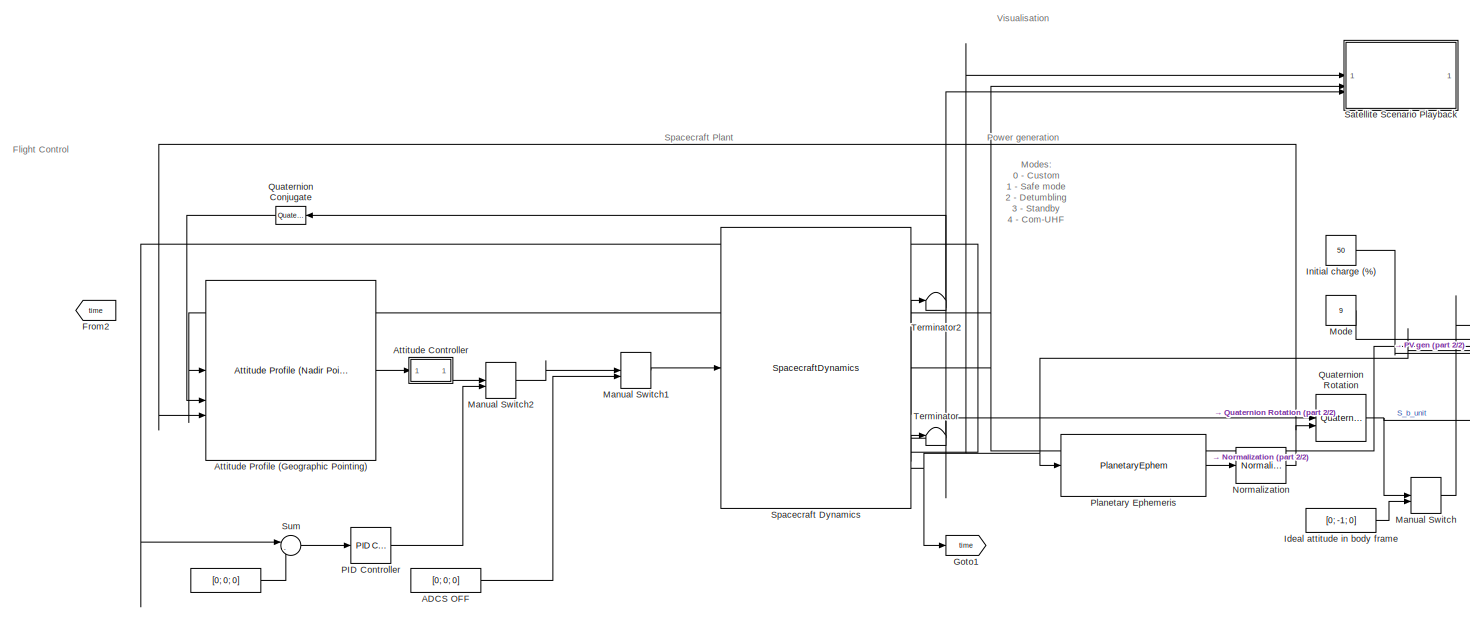
[diagram: root canvas - part 1/2, most of the canvas]
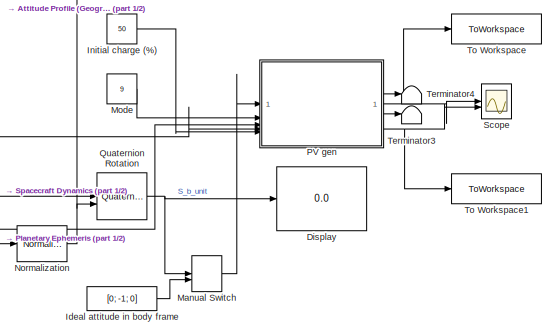
[diagram: root canvas - part 2/2, middle right region]
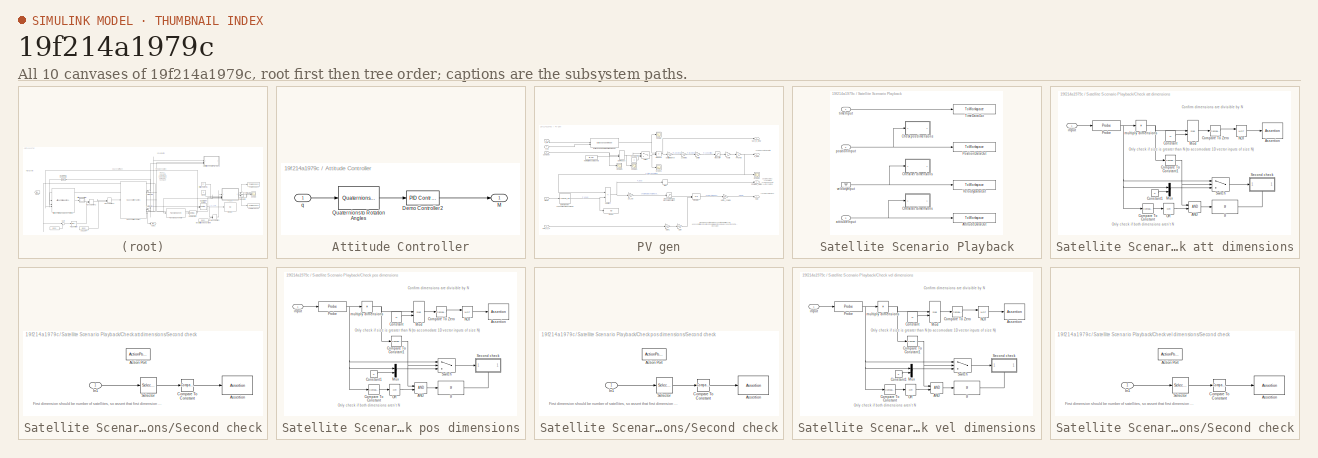
[diagram: thumbnail index - all 10 canvases of the model, root first then tree order]
MODEL slx_19f214a1979c
KIND model
CONFIG AbsTol = 1e-5
CONFIG EnableMultiTasking = off
CONFIG FixedStep = 1
CONFIG MaxStep = 5
CONFIG MinStep = auto
CONFIG RelTol = 0.5e-5
CONFIG SampleTimeConstraint = Unconstrained
CONFIG SolverName = FixedStepAuto
CONFIG StartTime = 0.0
CONFIG StopTime = 93*60
BLOCK [Constant]  
  Value = [0; 0; 0]
BLOCK [Constant] ADCS OFF
  Value = [0; 0; 0]
BLOCK [SubSystem] Attitude Controller
BLOCK [Reference] Attitude Controller/Demo Controller2  REF=slpidlib/PID Controller
  SourceBlock = slpidlib/PID Controller
  SourceType = PID 1dof
BLOCK [Outport] Attitude Controller/M
BLOCK [Reference] Attitude Controller/Quaternions to Rotation Angles  REF=sharedtransform/Quaternions to Rotation Angles
  AttributesFormatString = Rotation Order: %<rotationOrder>
  SourceBlock = sharedtransform/Quaternions to Rotation Angles
  SourceType = Quat2Ang
BLOCK [Inport] Attitude Controller/q
BLOCK [Reference] Attitude Profile (Geographic Pointing)  REF=aerolibsatdyn/Attitude Profile
(Nadir Pointing)
  SourceBlock = aerolibsatdyn/Attitude Profile\n(Nadir Pointing)
  SourceType = Attitude Profile
BLOCK [Display] Display
  Decimation = 1
BLOCK [From] From2
  GotoTag = time
BLOCK [Goto] Goto1
  GotoTag = time
BLOCK [Constant] Ideal attitude in body frame
  Value = [0; -1; 0]
BLOCK [Constant] Initial charge (%)
  Value = 50
BLOCK [ManualSwitch] Manual Switch
  CurrentSetting = 0
BLOCK [ManualSwitch] Manual Switch1
BLOCK [ManualSwitch] Manual Switch2
BLOCK [Constant] Mode
  Value = 9
BLOCK [Reference] Normalization  REF=dspmathops/Normalization
  SourceBlock = dspmathops/Normalization
  SourceType = Normalization
BLOCK [Reference] PID Controller  REF=slpidlib/PID Controller
  LibrarySourceBlock = simulink/Continuous/PID Controller
  SourceBlock = slpidlib/PID Controller
  SourceType = PID 1dof
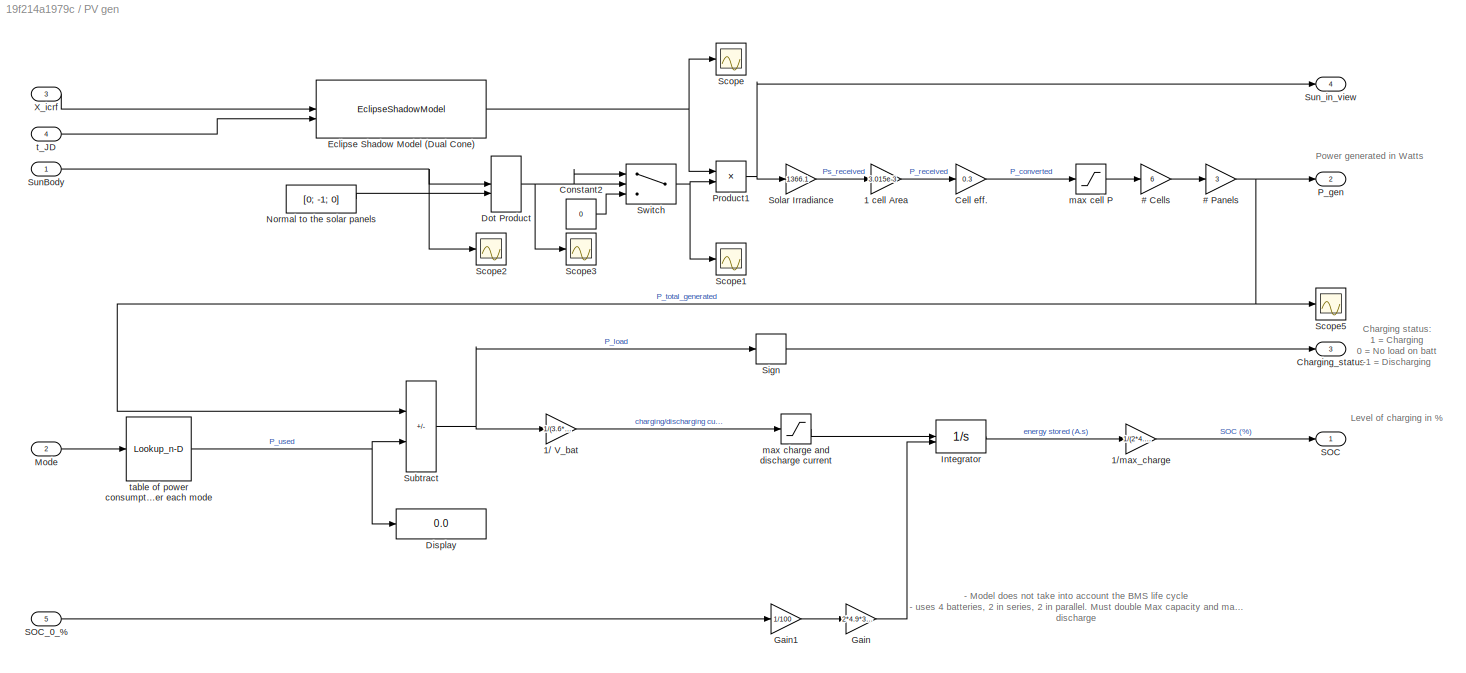
BLOCK [SubSystem] PV gen
BLOCK [Gain] PV gen/# Cells
  Gain = 6
BLOCK [Gain] PV gen/# Panels
  Gain = 3
BLOCK [Gain] PV gen/1 cell Area
  Gain = 3.015e-3
BLOCK [Gain] PV gen/1// V_bat
  Gain = 1/(3.6*2)
BLOCK [Gain] PV gen/1//max_charge
  Gain = 1/(2*4.9*3600)
BLOCK [Gain] PV gen/Cell eff.
  Gain = 0.3
BLOCK [Outport] PV gen/Charging_status
  Port = 3
BLOCK [Constant] PV gen/Constant2
  Value = 0
BLOCK [Display] PV gen/Display
  Decimation = 1
BLOCK [DotProduct] PV gen/Dot Product
  OutDataTypeStr = Inherit: Inherit via internal rule
BLOCK [EclipseShadowModel] PV gen/Eclipse Shadow Model (Dual Cone)
  ephemerisStartDate = juliandate(2025, 1, 1)
  startDate = juliandate(2025, 1, 1)
  timeSource = Port (Julian date)
  useEphemerisDateRange = off
BLOCK [Gain] PV gen/Gain
  Gain = 2*4.9*3600
BLOCK [Gain] PV gen/Gain1
  Gain = 1/100
BLOCK [Integrator] PV gen/Integrator
  InitialCondition = 2*4.9*3600
  InitialConditionSource = external
  LimitOutput = on
  LowerSaturationLimit = 0
  UpperSaturationLimit = 2*4.9*3600
BLOCK [Inport] PV gen/Mode
  Port = 2
BLOCK [Constant] PV gen/Normal to the solar panels
  Value = [0; -1; 0]
BLOCK [Outport] PV gen/P_gen
  Port = 2
BLOCK [Product] PV gen/Product1
BLOCK [Outport] PV gen/SOC
BLOCK [Inport] PV gen/SOC_0_%
  Port = 5
BLOCK [Scope] PV gen/Scope
  ActiveDisplayYMaximum = 1.125
  ActiveDisplayYMinimum = -0.12499999999999997
  DataLoggingVariableName = ScopeData1
  Floating = off
  GraphicalSettings = {"Style":{"BackgroundColor":[0.12941176470588237,0.12941176470588237,0.12941176470588237],"AxesColor":[0.07058823529411765,0.07058823529411765,0.07058823529411765],"LabelsColor":[0.8509803921568627,0.8509803921568627,0.8509803921568627],"PreserveColors":false,"Visible":[true],"LineStyle":["-"],"LineWidth":[1.5],"BarWidth":[0.9],"LineColor":["auto"],"LineFaceAlpha":[1],"LineEdgeAlpha":[1],"Marker":...<+1999ch>
  MultipleDisplayCache = [{"MaxYLimMag":1.125,"MaxYLimReal":1.125,"MinYLimMag":0,"MinYLimReal":-0.12499999999999997,"PlotAsMagnitudePhase":false,"ShowGrid":true,"ShowLegend":false,"Title":"%<SignalLabel>","YLabel":""}]
  NumInputPorts = 1
  ScopeFrameLocation = window
  WasSavedAsWebScope = on
  WindowPosition = [488.000000,222.000000,560.000000,420.000000,]
BLOCK [Scope] PV gen/Scope1
  ActiveDisplayYMaximum = 1.0507685968732166
  ActiveDisplayYMinimum = -0.12862193886085324
  DataLoggingVariableName = ScopeData2
  Floating = off
  GraphicalSettings = {"AxesScalingProperties":{"AlignXAxis":"Center","AlignYAxis":"Center","AutoScaleXAxisLimits":false,"AxesScaling":"Manual","AxesScalingNumUpdates":10,"ExpandOnly":true,"ScaleAxesLimitsAtStop":false,"XAxisDataRange":100,"YAxisDataRange":80},"DisplayProperties":{"ColorOrder":["auto","auto","auto","auto","auto","auto","auto","auto","auto","auto","auto","auto","auto","auto","auto","auto","auto","auto",...<+2004ch>
  MultipleDisplayCache = [{"MaxYLimMag":1.0614514821606629,"MaxYLimReal":1.0507685968732166,"MinYLimMag":0,"MinYLimReal":-0.12862193886085324,"PlotAsMagnitudePhase":false,"ShowGrid":true,"ShowLegend":false,"Title":"%<SignalLabel>","YLabel":""}]
  NumInputPorts = 1
  ScopeFrameLocation = window
  WasSavedAsWebScope = on
  WindowPosition = [488.000000,222.000000,560.000000,420.000000,]
BLOCK [Scope] PV gen/Scope2
  ActiveDisplayYMaximum = 0.83418993366486061
  ActiveDisplayYMinimum = -1.2032866787642285
  DataLoggingVariableName = ScopeData3
  Floating = off
  GraphicalSettings = {"Style":{"BackgroundColor":[0.12941176470588237,0.12941176470588237,0.12941176470588237],"AxesColor":[0.07058823529411765,0.07058823529411765,0.07058823529411765],"LabelsColor":[0.8509803921568627,0.8509803921568627,0.8509803921568627],"PreserveColors":false,"Visible":[true,true,true],"LineStyle":["-","-","-"],"LineWidth":[1.5,1.5,1.5],"BarWidth":[0.9,0.9,0.9],"LineColor":["auto","auto","auto"],"...<+2240ch>
  MultipleDisplayCache = [{"MaxYLimMag":1.2032866787642285,"MaxYLimReal":0.83418993366486061,"MinYLimMag":0,"MinYLimReal":-1.2032866787642285,"PlotAsMagnitudePhase":false,"ShowGrid":true,"ShowLegend":true,"Title":"%<SignalLabel>","YLabel":""}]
  NumInputPorts = 1
  ScopeFrameLocation = window
  ShowLegend = on
  WasSavedAsWebScope = on
  WindowPosition = [488.000000,222.000000,560.000000,420.000000,]
BLOCK [Scope] PV gen/Scope3
  ActiveDisplayYMaximum = 1.3555163431944595
  ActiveDisplayYMinimum = -1.6944670146088379
  DataLoggingVariableName = ScopeData4
  Floating = off
  GraphicalSettings = {"AxesScalingProperties":{"AlignXAxis":"Center","AlignYAxis":"Center","AutoScaleXAxisLimits":false,"AxesScaling":"Manual","AxesScalingNumUpdates":10,"ExpandOnly":true,"ScaleAxesLimitsAtStop":false,"XAxisDataRange":100,"YAxisDataRange":80},"DisplayProperties":{"ColorOrder":["auto","auto","auto","auto","auto","auto","auto","auto","auto","auto","auto","auto","auto","auto","auto","auto","auto","auto",...<+2016ch>
  MultipleDisplayCache = [{"MaxYLimMag":1.1402567662134069,"MaxYLimReal":1.3555163431944595,"MinYLimMag":0,"MinYLimReal":-1.6944670146088379,"PlotAsMagnitudePhase":false,"ShowGrid":true,"ShowLegend":false,"Title":"%<SignalLabel>","YLabel":""}]
  NumInputPorts = 1
  ScopeFrameLocation = window
  WasSavedAsWebScope = on
  WindowPosition = [488.000000,222.000000,560.000000,420.000000,]
BLOCK [Scope] PV gen/Scope5
  ActiveDisplayYMaximum = 19.168186858045033
  ActiveDisplayYMinimum = -9.7669917154673218
  DataLoggingVariableName = ScopeData6
  Floating = off
  GraphicalSettings = {"Style":{"BackgroundColor":[0.12941176470588237,0.12941176470588237,0.12941176470588237],"AxesColor":[0.07058823529411765,0.07058823529411765,0.07058823529411765],"LabelsColor":[0.8509803921568627,0.8509803921568627,0.8509803921568627],"PreserveColors":false,"Visible":[true],"LineStyle":["-"],"LineWidth":[1.5],"BarWidth":[0.9],"LineColor":["auto"],"LineFaceAlpha":[1],"LineEdgeAlpha":[1],"Marker":...<+1999ch>
  MultipleDisplayCache = [{"MaxYLimMag":10.623762500464176,"MaxYLimReal":19.168186858045033,"MinYLimMag":0,"MinYLimReal":-9.7669917154673218,"PlotAsMagnitudePhase":false,"ShowGrid":true,"ShowLegend":false,"Title":"%<SignalLabel>","YLabel":""}]
  NumInputPorts = 1
  ScopeFrameLocation = window
  WasSavedAsWebScope = on
  WindowPosition = [83.000000,-92.000000,1440.000000,844.000000,]
BLOCK [Signum] PV gen/Sign
BLOCK [Gain] PV gen/Solar Irradiance
  Gain = 1366.1
BLOCK [Sum] PV gen/Subtract
  IconShape = rectangular
  Inputs = +-
BLOCK [Inport] PV gen/SunBody
BLOCK [Outport] PV gen/Sun_in_view
  Port = 4
BLOCK [Switch] PV gen/Switch
  Criteria = u2 > Threshold
  InputSameDT = off
  SaturateOnIntegerOverflow = off
BLOCK [Inport] PV gen/X_icrf
  Port = 3
BLOCK [Saturate] PV gen/max cell P
  LowerLimit = 0
  UpperLimit = 1.23
BLOCK [Saturate] PV gen/max charge and discharge current
  LowerLimit = -(2*4.9)
  UpperLimit = (2*2.45)
BLOCK [Inport] PV gen/t_JD
  Port = 4
BLOCK [Lookup_n-D] PV gen/table of power consumption per each mode
  BreakpointsForDimension1 = [0, 1, 2, 3, 4, 5, 6, 7, 8, 9]
  InputPortMap = u0
  InternalRulePriority = Speed
  NumberOfTableDimensions = 1
  RndMeth = Simplest
  Table = [0, 2.2, 4.93, 5.32, 8.97, 12.44, 8.66, 10.93, 11.79, 6.86]
BLOCK [PlanetaryEphem] Planetary Ephemeris
  outputVelocity = off
BLOCK [Reference] Quaternion Conjugate  REF=aerolibutil/Quaternion
Conjugate
  SourceBlock = aerolibutil/Quaternion\nConjugate
  SourceType = Quaternion Conjugate
BLOCK [Reference] Quaternion Rotation  REF=aerolibutil/Quaternion
Rotation
  SourceBlock = aerolibutil/Quaternion\nRotation
  SourceType = Quaternion Rotation
BLOCK [SubSystem] Satellite Scenario Playback
  AttributesFormatString = Open viewer: %<openViewer>
  StopFcn = exSatScenBlk = gcb;\nexSatScenMdl = bdroot(exSatScenBlk);\n\n% If workspace blocks are stored in single output variable, need to access from there\nif get_param(exSatScenMdl, "ReturnWorkspaceOutputs") == "on"\n    exSatScenOutVar = get_param(exSatScenMdl, "ReturnWorkspaceOutputsName");\n    if exist(exSatScenOutVar)\n        exSatScenTimeData = eval(exSatScenOutVar).exSatScenTimeData;\n        exSatScenPo...<+867ch>
BLOCK [ToWorkspace] Satellite Scenario Playback/AttitudeDataOut
  FixptAsFi = on
  MaxDataPoints = inf
  SampleTime = -1
  VariableName = exSatScenAttitudeData
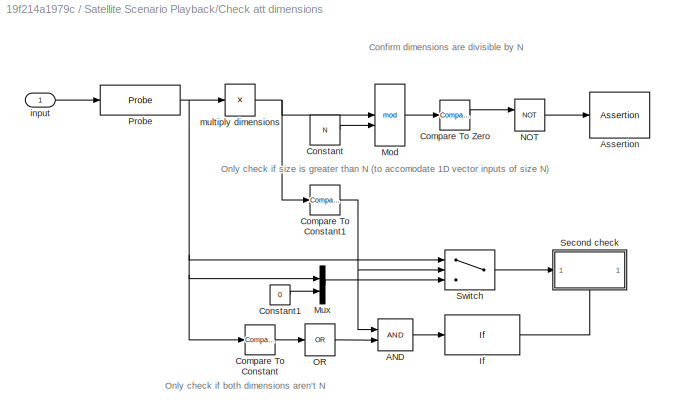
BLOCK [SubSystem] Satellite Scenario Playback/Check att dimensions
BLOCK [Logic] Satellite Scenario Playback/Check att dimensions/AND
  AllPortsSameDT = off
  IconShape = distinctive
  OutDataTypeStr = boolean
BLOCK [Assertion] Satellite Scenario Playback/Check att dimensions/Assertion
  AssertionFailFcn = error("Attitude input must be be a vector with 4 elements or a 2-D array of size [m x 4].")
BLOCK [Reference] Satellite Scenario Playback/Check att dimensions/Compare To Constant  REF=simulink/Logic and Bit
Operations/Compare
To Constant
  SourceBlock = simulink/Logic and Bit\nOperations/Compare\nTo Constant
  SourceType = Compare To Constant
BLOCK [Reference] Satellite Scenario Playback/Check att dimensions/Compare To Constant1  REF=simulink/Logic and Bit
Operations/Compare
To Constant
  SourceBlock = simulink/Logic and Bit\nOperations/Compare\nTo Constant
  SourceType = Compare To Constant
BLOCK [Reference] Satellite Scenario Playback/Check att dimensions/Compare To Zero  REF=simulink/Logic and Bit
Operations/Compare
To Zero
  SourceBlock = simulink/Logic and Bit\nOperations/Compare\nTo Zero
  SourceType = Compare To Zero
BLOCK [Constant] Satellite Scenario Playback/Check att dimensions/Constant
  OutDataTypeStr = uint8
  Value = N
BLOCK [Constant] Satellite Scenario Playback/Check att dimensions/Constant1
  OutDataTypeStr = uint8
  Value = 0
BLOCK [If] Satellite Scenario Playback/Check att dimensions/If
  IfExpression = u1 ~= 0
  ShowElse = off
  ZeroCross = off
BLOCK [Math] Satellite Scenario Playback/Check att dimensions/Mod
  Operator = mod
BLOCK [Mux] Satellite Scenario Playback/Check att dimensions/Mux
  DisplayOption = bar
  Inputs = 2
BLOCK [Logic] Satellite Scenario Playback/Check att dimensions/NOT
  AllPortsSameDT = off
  IconShape = distinctive
  Operator = NOT
  OutDataTypeStr = boolean
BLOCK [Logic] Satellite Scenario Playback/Check att dimensions/OR
  AllPortsSameDT = off
  IconShape = distinctive
  Inputs = 1
  Operator = OR
  OutDataTypeStr = boolean
BLOCK [Probe] Satellite Scenario Playback/Check att dimensions/Probe
  ProbeComplexSignal = off
  ProbeDimensionsDataType = uint8
  ProbeSampleTime = off
  ProbeSignalDimensions = on
  ProbeWidth = off
BLOCK [SubSystem] Satellite Scenario Playback/Check att dimensions/Second check
  NameLocation = top
  TreatAsAtomicUnit = on
BLOCK [ActionPort] Satellite Scenario Playback/Check att dimensions/Second check/Action Port
  ActionPortLabel = if(u1 ~= 0)
BLOCK [Assertion] Satellite Scenario Playback/Check att dimensions/Second check/Assertion
  AssertionFailFcn = error("Attitude input must be be a vector with 4 elements or a 2-D array of size [m x 4].")
BLOCK [Reference] Satellite Scenario Playback/Check att dimensions/Second check/Compare To Constant  REF=simulink/Logic and Bit
Operations/Compare
To Constant
  SourceBlock = simulink/Logic and Bit\nOperations/Compare\nTo Constant
  SourceType = Compare To Constant
BLOCK [Inport] Satellite Scenario Playback/Check att dimensions/Second check/In1
BLOCK [Selector] Satellite Scenario Playback/Check att dimensions/Second check/Selector
  IndexOptions = Index vector (dialog)
  Indices = [1]
  InputPortWidth = 2
  OutputSizes = 1
BLOCK [Switch] Satellite Scenario Playback/Check att dimensions/Switch
  Criteria = u2 ~= 0
  InputSameDT = off
  SaturateOnIntegerOverflow = off
BLOCK [Inport] Satellite Scenario Playback/Check att dimensions/input
BLOCK [Product] Satellite Scenario Playback/Check att dimensions/multiply dimensions
  Inputs = *
  OutDataTypeStr = uint8
BLOCK [SubSystem] Satellite Scenario Playback/Check pos dimensions
BLOCK [Logic] Satellite Scenario Playback/Check pos dimensions/AND
  AllPortsSameDT = off
  IconShape = distinctive
  OutDataTypeStr = boolean
BLOCK [Assertion] Satellite Scenario Playback/Check pos dimensions/Assertion
  AssertionFailFcn = error("Position input must be be a vector with 3 elements or a 2-D array of size [m x 3].")
BLOCK [Reference] Satellite Scenario Playback/Check pos dimensions/Compare To Constant  REF=simulink/Logic and Bit
Operations/Compare
To Constant
  SourceBlock = simulink/Logic and Bit\nOperations/Compare\nTo Constant
  SourceType = Compare To Constant
BLOCK [Reference] Satellite Scenario Playback/Check pos dimensions/Compare To Constant1  REF=simulink/Logic and Bit
Operations/Compare
To Constant
  SourceBlock = simulink/Logic and Bit\nOperations/Compare\nTo Constant
  SourceType = Compare To Constant
BLOCK [Reference] Satellite Scenario Playback/Check pos dimensions/Compare To Zero  REF=simulink/Logic and Bit
Operations/Compare
To Zero
  SourceBlock = simulink/Logic and Bit\nOperations/Compare\nTo Zero
  SourceType = Compare To Zero
BLOCK [Constant] Satellite Scenario Playback/Check pos dimensions/Constant
  OutDataTypeStr = uint8
  Value = N
BLOCK [Constant] Satellite Scenario Playback/Check pos dimensions/Constant1
  OutDataTypeStr = uint8
  Value = 0
BLOCK [If] Satellite Scenario Playback/Check pos dimensions/If
  IfExpression = u1 ~= 0
  ShowElse = off
  ZeroCross = off
BLOCK [Math] Satellite Scenario Playback/Check pos dimensions/Mod
  Operator = mod
BLOCK [Mux] Satellite Scenario Playback/Check pos dimensions/Mux
  DisplayOption = bar
  Inputs = 2
BLOCK [Logic] Satellite Scenario Playback/Check pos dimensions/NOT
  AllPortsSameDT = off
  IconShape = distinctive
  Operator = NOT
  OutDataTypeStr = boolean
BLOCK [Logic] Satellite Scenario Playback/Check pos dimensions/OR
  AllPortsSameDT = off
  IconShape = distinctive
  Inputs = 1
  Operator = OR
  OutDataTypeStr = boolean
BLOCK [Probe] Satellite Scenario Playback/Check pos dimensions/Probe
  ProbeComplexSignal = off
  ProbeDimensionsDataType = uint8
  ProbeSampleTime = off
  ProbeSignalDimensions = on
  ProbeWidth = off
BLOCK [SubSystem] Satellite Scenario Playback/Check pos dimensions/Second check
  NameLocation = top
  TreatAsAtomicUnit = on
BLOCK [ActionPort] Satellite Scenario Playback/Check pos dimensions/Second check/Action Port
  ActionPortLabel = if(u1 ~= 0)
BLOCK [Assertion] Satellite Scenario Playback/Check pos dimensions/Second check/Assertion
  AssertionFailFcn = error("Position input must be be a vector with 3 elements or a 2-D array of size [m x 3].")
BLOCK [Reference] Satellite Scenario Playback/Check pos dimensions/Second check/Compare To Constant  REF=simulink/Logic and Bit
Operations/Compare
To Constant
  SourceBlock = simulink/Logic and Bit\nOperations/Compare\nTo Constant
  SourceType = Compare To Constant
BLOCK [Inport] Satellite Scenario Playback/Check pos dimensions/Second check/In1
BLOCK [Selector] Satellite Scenario Playback/Check pos dimensions/Second check/Selector
  IndexOptions = Index vector (dialog)
  Indices = [1]
  InputPortWidth = 2
  OutputSizes = 1
BLOCK [Switch] Satellite Scenario Playback/Check pos dimensions/Switch
  Criteria = u2 ~= 0
  InputSameDT = off
  SaturateOnIntegerOverflow = off
BLOCK [Inport] Satellite Scenario Playback/Check pos dimensions/input
BLOCK [Product] Satellite Scenario Playback/Check pos dimensions/multiply dimensions
  Inputs = *
  OutDataTypeStr = uint8
BLOCK [SubSystem] Satellite Scenario Playback/Check vel dimensions
BLOCK [Logic] Satellite Scenario Playback/Check vel dimensions/AND
  AllPortsSameDT = off
  IconShape = distinctive
  OutDataTypeStr = boolean
BLOCK [Assertion] Satellite Scenario Playback/Check vel dimensions/Assertion
  AssertionFailFcn = error("Velocity input must be be a vector with 3 elements or a 2-D array of size [m x 3].")
  Enabled = off
BLOCK [Reference] Satellite Scenario Playback/Check vel dimensions/Compare To Constant  REF=simulink/Logic and Bit
Operations/Compare
To Constant
  SourceBlock = simulink/Logic and Bit\nOperations/Compare\nTo Constant
  SourceType = Compare To Constant
BLOCK [Reference] Satellite Scenario Playback/Check vel dimensions/Compare To Constant1  REF=simulink/Logic and Bit
Operations/Compare
To Constant
  SourceBlock = simulink/Logic and Bit\nOperations/Compare\nTo Constant
  SourceType = Compare To Constant
BLOCK [Reference] Satellite Scenario Playback/Check vel dimensions/Compare To Zero  REF=simulink/Logic and Bit
Operations/Compare
To Zero
  SourceBlock = simulink/Logic and Bit\nOperations/Compare\nTo Zero
  SourceType = Compare To Zero
BLOCK [Constant] Satellite Scenario Playback/Check vel dimensions/Constant
  OutDataTypeStr = uint8
  Value = N
BLOCK [Constant] Satellite Scenario Playback/Check vel dimensions/Constant1
  OutDataTypeStr = uint8
  Value = 0
BLOCK [If] Satellite Scenario Playback/Check vel dimensions/If
  IfExpression = u1 ~= 0
  ShowElse = off
  ZeroCross = off
BLOCK [Math] Satellite Scenario Playback/Check vel dimensions/Mod
  Operator = mod
BLOCK [Mux] Satellite Scenario Playback/Check vel dimensions/Mux
  DisplayOption = bar
  Inputs = 2
BLOCK [Logic] Satellite Scenario Playback/Check vel dimensions/NOT
  AllPortsSameDT = off
  IconShape = distinctive
  Operator = NOT
  OutDataTypeStr = boolean
BLOCK [Logic] Satellite Scenario Playback/Check vel dimensions/OR
  AllPortsSameDT = off
  IconShape = distinctive
  Inputs = 1
  Operator = OR
  OutDataTypeStr = boolean
BLOCK [Probe] Satellite Scenario Playback/Check vel dimensions/Probe
  ProbeComplexSignal = off
  ProbeDimensionsDataType = uint8
  ProbeSampleTime = off
  ProbeSignalDimensions = on
  ProbeWidth = off
BLOCK [SubSystem] Satellite Scenario Playback/Check vel dimensions/Second check
  NameLocation = top
  TreatAsAtomicUnit = on
BLOCK [ActionPort] Satellite Scenario Playback/Check vel dimensions/Second check/Action Port
  ActionPortLabel = if(u1 ~= 0)
BLOCK [Assertion] Satellite Scenario Playback/Check vel dimensions/Second check/Assertion
  AssertionFailFcn = error("Velocity input must be be a vector with 3 elements or a 2-D array of size [m x 3].")
  Enabled = off
BLOCK [Reference] Satellite Scenario Playback/Check vel dimensions/Second check/Compare To Constant  REF=simulink/Logic and Bit
Operations/Compare
To Constant
  SourceBlock = simulink/Logic and Bit\nOperations/Compare\nTo Constant
  SourceType = Compare To Constant
BLOCK [Inport] Satellite Scenario Playback/Check vel dimensions/Second check/In1
BLOCK [Selector] Satellite Scenario Playback/Check vel dimensions/Second check/Selector
  IndexOptions = Index vector (dialog)
  Indices = [1]
  InputPortWidth = 2
  OutputSizes = 1
BLOCK [Switch] Satellite Scenario Playback/Check vel dimensions/Switch
  Criteria = u2 ~= 0
  InputSameDT = off
  SaturateOnIntegerOverflow = off
BLOCK [Inport] Satellite Scenario Playback/Check vel dimensions/input
BLOCK [Product] Satellite Scenario Playback/Check vel dimensions/multiply dimensions
  Inputs = *
  OutDataTypeStr = uint8
BLOCK [ToWorkspace] Satellite Scenario Playback/PositionDataOut
  FixptAsFi = on
  MaxDataPoints = inf
  SampleTime = -1
  VariableName = exSatScenPositionData
BLOCK [ToWorkspace] Satellite Scenario Playback/TimeDataOut
  FixptAsFi = on
  MaxDataPoints = inf
  SampleTime = -1
  VariableName = exSatScenTimeData
BLOCK [ToWorkspace] Satellite Scenario Playback/VelocityDataOut
  FixptAsFi = on
  MaxDataPoints = inf
  SampleTime = -1
  VariableName = exSatScenVelocityData
BLOCK [Inport] Satellite Scenario Playback/attitudeInput
  Port = 3
BLOCK [Inport] Satellite Scenario Playback/positionInput
  Port = 2
  Unit = m
BLOCK [Inport] Satellite Scenario Playback/timeInput
  PortDimensions = 1
BLOCK [Ground] Satellite Scenario Playback/velocityInput
BLOCK [Scope] Scope
  ActiveDisplayYMaximum = 1.5701197234711715
  ActiveDisplayYMinimum = -0.38168388883599313
  Floating = off
  GraphicalSettings = {"Style":{"BackgroundColor":[0.12941176470588237,0.12941176470588237,0.12941176470588237],"AxesColor":[0.07058823529411765,0.07058823529411765,0.07058823529411765],"LabelsColor":[0.8509803921568627,0.8509803921568627,0.8509803921568627],"PreserveColors":false,"Visible":[true,true],"LineStyle":["-","-"],"LineWidth":[1.5,1.5],"BarWidth":[0.9,0.9],"LineColor":["auto","auto"],"LineFaceAlpha":[1,1],"Li...<+2106ch>
  MultipleDisplayCache = [{"MaxYLimMag":1.125,"MaxYLimReal":1.5701197234711715,"MinYLimMag":0,"MinYLimReal":-0.38168388883599313,"PlotAsMagnitudePhase":false,"ShowGrid":true,"ShowLegend":false,"Title":"%<SignalLabel>","YLabel":""}]
  NumInputPorts = 2
  ScopeFrameLocation = window
  WasSavedAsWebScope = on
  WindowPosition = [203.000000,55.000000,1219.000000,627.000000,]
BLOCK [SpacecraftDynamics] Spacecraft Dynamics
  attitude = [0.1509 0.4868 0.3031 -0.8052]
  attitudeRate = [0 0 0]
  forcesIn = off
  inertia = eye(3)
  mass = 1
  outputTransform = on
  startDate = juliandate(2025, 1, 1, 12, 0, 0)
BLOCK [Sum] Sum
  Inputs = |-+
BLOCK [Terminator] Terminator
BLOCK [Terminator] Terminator2
BLOCK [Terminator] Terminator3
BLOCK [Terminator] Terminator4
BLOCK [ToWorkspace] To Workspace
  FixptAsFi = on
  MaxDataPoints = inf
  SampleTime = -1
  SaveFormat = Timeseries
  VariableName = SOC
BLOCK [ToWorkspace] To Workspace1
  FixptAsFi = on
  MaxDataPoints = inf
  SampleTime = -1
  SaveFormat = Timeseries
  VariableName = SIV
ANNOTATION (root): Spacecraft Plant
ANNOTATION (root): Modes: 0 - Custom 1 - Safe mode 2 - Detumbling 3 - Standby 4 - Com-UHF 5 - Com-SBand * 6 - Beaconing 7 - Imaging 8 - Inference 9 - Laboratory
ANNOTATION (root): Flight Control
ANNOTATION (root): Power generation
ANNOTATION (root): Visualisation
ANNOTATION PV gen: - Model does not take into account the BMS life cycle - uses 4 batteries, 2 in series, 2 in parallel. Must double Max capacity and max charge/ discharge
ANNOTATION PV gen: Charging status: 1 = Charging 0 = No load on batt -1 = Discharging
ANNOTATION PV gen: Level of charging in %
ANNOTATION PV gen: Power generated in Watts
ANNOTATION Satellite Scenario Playback/Check att dimensions: Confirm dimensions are divisible by N
ANNOTATION Satellite Scenario Playback/Check att dimensions: Only check if both dimensions aren't N
ANNOTATION Satellite Scenario Playback/Check att dimensions: Only check if size is greater than N (to accomodate 1D vector inputs of size N)
ANNOTATION Satellite Scenario Playback/Check att dimensions/Second check: First dimension should be number of satellites, so assert that first dimension is not equal to N
ANNOTATION Satellite Scenario Playback/Check pos dimensions: Confirm dimensions are divisible by N
ANNOTATION Satellite Scenario Playback/Check pos dimensions: Only check if both dimensions aren't N
ANNOTATION Satellite Scenario Playback/Check pos dimensions: Only check if size is greater than N (to accomodate 1D vector inputs of size N)
ANNOTATION Satellite Scenario Playback/Check pos dimensions/Second check: First dimension should be number of satellites, so assert that first dimension is not equal to N
ANNOTATION Satellite Scenario Playback/Check vel dimensions: Confirm dimensions are divisible by N
ANNOTATION Satellite Scenario Playback/Check vel dimensions: Only check if both dimensions aren't N
ANNOTATION Satellite Scenario Playback/Check vel dimensions: Only check if size is greater than N (to accomodate 1D vector inputs of size N)
ANNOTATION Satellite Scenario Playback/Check vel dimensions/Second check: First dimension should be number of satellites, so assert that first dimension is not equal to N
LINE  :1 -> Sum:2
LINE ADCS OFF:1 -> Manual Switch1:2
LINE Attitude Controller/Demo Controller2:1 -> Attitude Controller/M:1
LINE Attitude Controller/Quaternions to Rotation Angles:1 -> Attitude Controller/Demo Controller2:1
LINE Attitude Controller/q:1 -> Attitude Controller/Quaternions to Rotation Angles:1
LINE Attitude Controller:1 -> Manual Switch2:1
LINE Attitude Profile (Geographic Pointing):1 -> Attitude Controller:1
LINE Ideal attitude in body frame:1 -> Manual Switch:2
LINE Initial charge (%):1 -> PV gen:5
LINE Manual Switch1:1 -> Spacecraft Dynamics:1
LINE Manual Switch2:1 -> Manual Switch1:1
LINE Manual Switch:1 -> PV gen:1
LINE Mode:1 -> PV gen:2
NET Normalization:1 -> Attitude Profile (Geographic Pointing):3, Quaternion Rotation:2
LINE PID Controller:1 -> Manual Switch2:2
LINE PV gen/# Cells:1 -> PV gen/# Panels:1
NET PV gen/# Panels:1 -> PV gen/P_gen:1, PV gen/Scope5:1, PV gen/Subtract:1
LINE PV gen/1 cell Area:1 -> PV gen/Cell eff.:1
LINE PV gen/1// V_bat:1 -> PV gen/max charge and discharge current:1
LINE PV gen/1//max_charge:1 -> PV gen/SOC:1
LINE PV gen/Cell eff.:1 -> PV gen/max cell P:1
LINE PV gen/Constant2:1 -> PV gen/Switch:3
NET PV gen/Dot Product:1 -> PV gen/Scope3:1, PV gen/Switch:1, PV gen/Switch:2
NET PV gen/Eclipse Shadow Model (Dual Cone):1 -> PV gen/Product1:1, PV gen/Scope:1
LINE PV gen/Gain1:1 -> PV gen/Gain:1
LINE PV gen/Gain:1 -> PV gen/Integrator:2
LINE PV gen/Integrator:1 -> PV gen/1//max_charge:1
LINE PV gen/Mode:1 -> PV gen/table of power consumption per each mode:1
LINE PV gen/Normal to the solar panels:1 -> PV gen/Dot Product:2
NET PV gen/Product1:1 -> PV gen/Solar Irradiance:1, PV gen/Sun_in_view:1
LINE PV gen/SOC_0_%:1 -> PV gen/Gain1:1
LINE PV gen/Sign:1 -> PV gen/Charging_status:1
LINE PV gen/Solar Irradiance:1 -> PV gen/1 cell Area:1
NET PV gen/Subtract:1 -> PV gen/1// V_bat:1, PV gen/Sign:1
NET PV gen/SunBody:1 -> PV gen/Dot Product:1, PV gen/Scope2:1
NET PV gen/Switch:1 -> PV gen/Product1:2, PV gen/Scope1:1
LINE PV gen/X_icrf:1 -> PV gen/Eclipse Shadow Model (Dual Cone):1
LINE PV gen/max cell P:1 -> PV gen/# Cells:1
LINE PV gen/max charge and discharge current:1 -> PV gen/Integrator:1
LINE PV gen/t_JD:1 -> PV gen/Eclipse Shadow Model (Dual Cone):2
NET PV gen/table of power consumption per each mode:1 -> PV gen/Display:1, PV gen/Subtract:2
NET PV gen:1 -> Scope:1, To Workspace:1
LINE PV gen:2 -> Terminator4:1
LINE PV gen:3 -> Terminator3:1
NET PV gen:4 -> Scope:2, To Workspace1:1
LINE Planetary Ephemeris:1 -> Normalization:1
LINE Quaternion Conjugate:1 -> Attitude Profile (Geographic Pointing):2
NET Quaternion Rotation:1 -> Display:1, Manual Switch:1
LINE Satellite Scenario Playback/Check att dimensions/AND:1 -> Satellite Scenario Playback/Check att dimensions/If:1
NET Satellite Scenario Playback/Check att dimensions/Compare To Constant1:1 -> Satellite Scenario Playback/Check att dimensions/AND:1, Satellite Scenario Playback/Check att dimensions/Switch:2
LINE Satellite Scenario Playback/Check att dimensions/Compare To Constant:1 -> Satellite Scenario Playback/Check att dimensions/OR:1
LINE Satellite Scenario Playback/Check att dimensions/Compare To Zero:1 -> Satellite Scenario Playback/Check att dimensions/NOT:1
LINE Satellite Scenario Playback/Check att dimensions/Constant1:1 -> Satellite Scenario Playback/Check att dimensions/Mux:2
LINE Satellite Scenario Playback/Check att dimensions/Constant:1 -> Satellite Scenario Playback/Check att dimensions/Mod:2
LINE Satellite Scenario Playback/Check att dimensions/If:1 -> Satellite Scenario Playback/Check att dimensions/Second check:ifaction
LINE Satellite Scenario Playback/Check att dimensions/Mod:1 -> Satellite Scenario Playback/Check att dimensions/Compare To Zero:1
LINE Satellite Scenario Playback/Check att dimensions/Mux:1 -> Satellite Scenario Playback/Check att dimensions/Switch:3
LINE Satellite Scenario Playback/Check att dimensions/NOT:1 -> Satellite Scenario Playback/Check att dimensions/Assertion:1
LINE Satellite Scenario Playback/Check att dimensions/OR:1 -> Satellite Scenario Playback/Check att dimensions/AND:2
NET Satellite Scenario Playback/Check att dimensions/Probe:1 -> Satellite Scenario Playback/Check att dimensions/Compare To Constant:1, Satellite Scenario Playback/Check att dimensions/Mux:1, Satellite Scenario Playback/Check att dimensions/Switch:1, Satellite Scenario Playback/Check att dimensions/multiply dimensions:1
LINE Satellite Scenario Playback/Check att dimensions/Second check/Compare To Constant:1 -> Satellite Scenario Playback/Check att dimensions/Second check/Assertion:1
LINE Satellite Scenario Playback/Check att dimensions/Second check/In1:1 -> Satellite Scenario Playback/Check att dimensions/Second check/Selector:1
LINE Satellite Scenario Playback/Check att dimensions/Second check/Selector:1 -> Satellite Scenario Playback/Check att dimensions/Second check/Compare To Constant:1
LINE Satellite Scenario Playback/Check att dimensions/Switch:1 -> Satellite Scenario Playback/Check att dimensions/Second check:1
LINE Satellite Scenario Playback/Check att dimensions/input:1 -> Satellite Scenario Playback/Check att dimensions/Probe:1
NET Satellite Scenario Playback/Check att dimensions/multiply dimensions:1 -> Satellite Scenario Playback/Check att dimensions/Compare To Constant1:1, Satellite Scenario Playback/Check att dimensions/Mod:1
LINE Satellite Scenario Playback/Check pos dimensions/AND:1 -> Satellite Scenario Playback/Check pos dimensions/If:1
NET Satellite Scenario Playback/Check pos dimensions/Compare To Constant1:1 -> Satellite Scenario Playback/Check pos dimensions/AND:1, Satellite Scenario Playback/Check pos dimensions/Switch:2
LINE Satellite Scenario Playback/Check pos dimensions/Compare To Constant:1 -> Satellite Scenario Playback/Check pos dimensions/OR:1
LINE Satellite Scenario Playback/Check pos dimensions/Compare To Zero:1 -> Satellite Scenario Playback/Check pos dimensions/NOT:1
LINE Satellite Scenario Playback/Check pos dimensions/Constant1:1 -> Satellite Scenario Playback/Check pos dimensions/Mux:2
LINE Satellite Scenario Playback/Check pos dimensions/Constant:1 -> Satellite Scenario Playback/Check pos dimensions/Mod:2
LINE Satellite Scenario Playback/Check pos dimensions/If:1 -> Satellite Scenario Playback/Check pos dimensions/Second check:ifaction
LINE Satellite Scenario Playback/Check pos dimensions/Mod:1 -> Satellite Scenario Playback/Check pos dimensions/Compare To Zero:1
LINE Satellite Scenario Playback/Check pos dimensions/Mux:1 -> Satellite Scenario Playback/Check pos dimensions/Switch:3
LINE Satellite Scenario Playback/Check pos dimensions/NOT:1 -> Satellite Scenario Playback/Check pos dimensions/Assertion:1
LINE Satellite Scenario Playback/Check pos dimensions/OR:1 -> Satellite Scenario Playback/Check pos dimensions/AND:2
NET Satellite Scenario Playback/Check pos dimensions/Probe:1 -> Satellite Scenario Playback/Check pos dimensions/Compare To Constant:1, Satellite Scenario Playback/Check pos dimensions/Mux:1, Satellite Scenario Playback/Check pos dimensions/Switch:1, Satellite Scenario Playback/Check pos dimensions/multiply dimensions:1
LINE Satellite Scenario Playback/Check pos dimensions/Second check/Compare To Constant:1 -> Satellite Scenario Playback/Check pos dimensions/Second check/Assertion:1
LINE Satellite Scenario Playback/Check pos dimensions/Second check/In1:1 -> Satellite Scenario Playback/Check pos dimensions/Second check/Selector:1
LINE Satellite Scenario Playback/Check pos dimensions/Second check/Selector:1 -> Satellite Scenario Playback/Check pos dimensions/Second check/Compare To Constant:1
LINE Satellite Scenario Playback/Check pos dimensions/Switch:1 -> Satellite Scenario Playback/Check pos dimensions/Second check:1
LINE Satellite Scenario Playback/Check pos dimensions/input:1 -> Satellite Scenario Playback/Check pos dimensions/Probe:1
NET Satellite Scenario Playback/Check pos dimensions/multiply dimensions:1 -> Satellite Scenario Playback/Check pos dimensions/Compare To Constant1:1, Satellite Scenario Playback/Check pos dimensions/Mod:1
LINE Satellite Scenario Playback/Check vel dimensions/AND:1 -> Satellite Scenario Playback/Check vel dimensions/If:1
NET Satellite Scenario Playback/Check vel dimensions/Compare To Constant1:1 -> Satellite Scenario Playback/Check vel dimensions/AND:1, Satellite Scenario Playback/Check vel dimensions/Switch:2
LINE Satellite Scenario Playback/Check vel dimensions/Compare To Constant:1 -> Satellite Scenario Playback/Check vel dimensions/OR:1
LINE Satellite Scenario Playback/Check vel dimensions/Compare To Zero:1 -> Satellite Scenario Playback/Check vel dimensions/NOT:1
LINE Satellite Scenario Playback/Check vel dimensions/Constant1:1 -> Satellite Scenario Playback/Check vel dimensions/Mux:2
LINE Satellite Scenario Playback/Check vel dimensions/Constant:1 -> Satellite Scenario Playback/Check vel dimensions/Mod:2
LINE Satellite Scenario Playback/Check vel dimensions/If:1 -> Satellite Scenario Playback/Check vel dimensions/Second check:ifaction
LINE Satellite Scenario Playback/Check vel dimensions/Mod:1 -> Satellite Scenario Playback/Check vel dimensions/Compare To Zero:1
LINE Satellite Scenario Playback/Check vel dimensions/Mux:1 -> Satellite Scenario Playback/Check vel dimensions/Switch:3
LINE Satellite Scenario Playback/Check vel dimensions/NOT:1 -> Satellite Scenario Playback/Check vel dimensions/Assertion:1
LINE Satellite Scenario Playback/Check vel dimensions/OR:1 -> Satellite Scenario Playback/Check vel dimensions/AND:2
NET Satellite Scenario Playback/Check vel dimensions/Probe:1 -> Satellite Scenario Playback/Check vel dimensions/Compare To Constant:1, Satellite Scenario Playback/Check vel dimensions/Mux:1, Satellite Scenario Playback/Check vel dimensions/Switch:1, Satellite Scenario Playback/Check vel dimensions/multiply dimensions:1
LINE Satellite Scenario Playback/Check vel dimensions/Second check/Compare To Constant:1 -> Satellite Scenario Playback/Check vel dimensions/Second check/Assertion:1
LINE Satellite Scenario Playback/Check vel dimensions/Second check/In1:1 -> Satellite Scenario Playback/Check vel dimensions/Second check/Selector:1
LINE Satellite Scenario Playback/Check vel dimensions/Second check/Selector:1 -> Satellite Scenario Playback/Check vel dimensions/Second check/Compare To Constant:1
LINE Satellite Scenario Playback/Check vel dimensions/Switch:1 -> Satellite Scenario Playback/Check vel dimensions/Second check:1
LINE Satellite Scenario Playback/Check vel dimensions/input:1 -> Satellite Scenario Playback/Check vel dimensions/Probe:1
NET Satellite Scenario Playback/Check vel dimensions/multiply dimensions:1 -> Satellite Scenario Playback/Check vel dimensions/Compare To Constant1:1, Satellite Scenario Playback/Check vel dimensions/Mod:1
NET Satellite Scenario Playback/attitudeInput:1 -> Satellite Scenario Playback/AttitudeDataOut:1, Satellite Scenario Playback/Check att dimensions:1
NET Satellite Scenario Playback/positionInput:1 -> Satellite Scenario Playback/Check pos dimensions:1, Satellite Scenario Playback/PositionDataOut:1
LINE Satellite Scenario Playback/timeInput:1 -> Satellite Scenario Playback/TimeDataOut:1
NET Satellite Scenario Playback/velocityInput:1 -> Satellite Scenario Playback/Check vel dimensions:1, Satellite Scenario Playback/VelocityDataOut:1
NET Spacecraft Dynamics:1 -> Attitude Profile (Geographic Pointing):1, PV gen:3, Satellite Scenario Playback:2
LINE Spacecraft Dynamics:2 -> Terminator2:1
NET Spacecraft Dynamics:3 -> Quaternion Conjugate:1, Quaternion Rotation:1, Satellite Scenario Playback:3
LINE Spacecraft Dynamics:4 -> Sum:1
LINE Spacecraft Dynamics:5 -> Terminator:1
NET Spacecraft Dynamics:6 -> Goto1:1, PV gen:4, Planetary Ephemeris:1, Satellite Scenario Playback:1
LINE Sum:1 -> PID Controller:1
note: NET lines group one-source signal fan-out (src -> all destinations, sorted); 1:1 wires keep LINE
